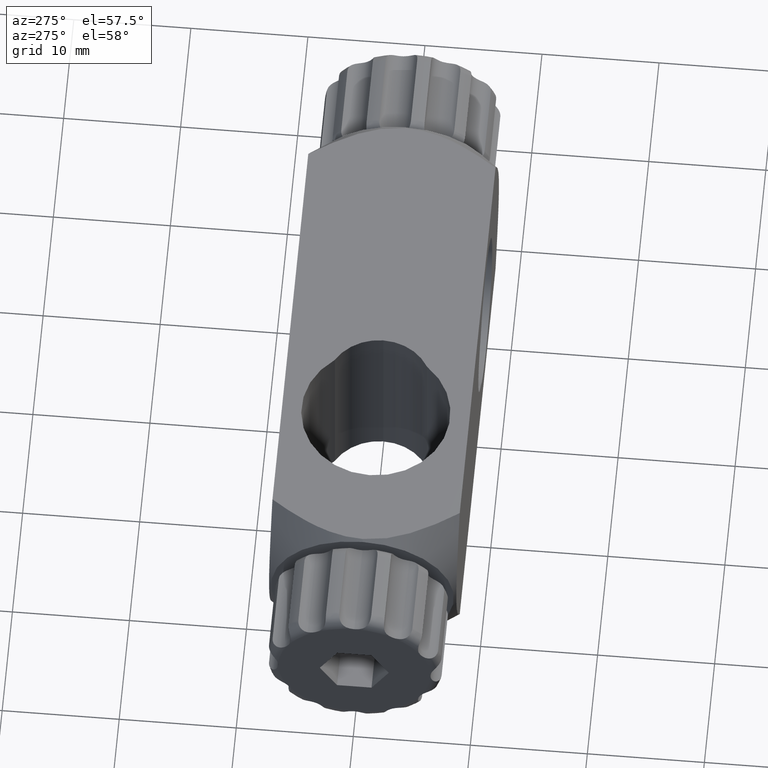
[diagram: clean part render]
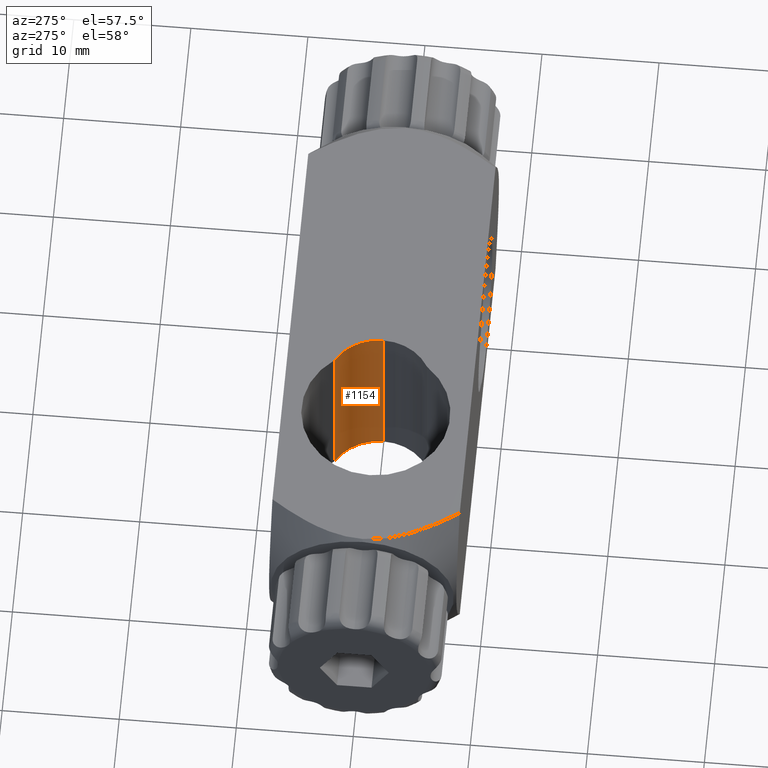
[diagram: same view with one face highlighted and labeled with its STEP entity id]
A machine part, auxiliary view. The second image highlights one B-rep face of the part: STEP entity #1154.
In plain terms, the highlighted cylindrical surface (partial cylindrical patch) has radius 4.5 mm, axis along (-0, -0, 1).
Its self-contained STEP definition (entity closure, byte-faithful):
#62 = DIRECTION ( 'NONE',  ( -0.0000000000000000000, -0.0000000000000000000, 1.000000000000000000 ) ) ;
#122 = CARTESIAN_POINT ( 'NONE',  ( -3.015625000000005300, 3.934273231408183000, -8.000000000000001800 ) ) ;
#159 = CARTESIAN_POINT ( 'NONE',  ( -0.7000000000000009500, -4.616274048041198100E-015, 7.999999999999998200 ) ) ;
#611 = VERTEX_POINT ( 'NONE', #4125 ) ;
#657 = ORIENTED_EDGE ( 'NONE', *, *, #3159, .T. ) ;
#853 = VERTEX_POINT ( 'NONE', #5436 ) ;
#1154 = ADVANCED_FACE ( 'NONE', ( #1426 ), #1277, .F. ) ;
#1182 = LINE ( 'NONE', #5445, #2466 ) ;
#1277 = CYLINDRICAL_SURFACE ( 'NONE', #5431, 4.499999999999999100 ) ;
#1394 = DIRECTION ( 'NONE',  ( -0.0000000000000000000, -0.0000000000000000000, 1.000000000000000000 ) ) ;
#1426 = FACE_OUTER_BOUND ( 'NONE', #5086, .T. ) ;
#1534 = CIRCLE ( 'NONE', #1821, 4.499999999999999100 ) ;
#1548 = CIRCLE ( 'NONE', #5279, 4.499999999999999100 ) ;
#1821 = AXIS2_PLACEMENT_3D ( 'NONE', #4513, #3640, #3157 ) ;
#1874 = VERTEX_POINT ( 'NONE', #159 ) ;
#2466 = VECTOR ( 'NONE', #1394, 1000.000000000000000 ) ;
#2591 = EDGE_CURVE ( 'NONE', #1874, #611, #1548, .T. ) ;
#2632 = EDGE_CURVE ( 'NONE', #5251, #611, #5835, .T. ) ;
#3157 = DIRECTION ( 'NONE',  ( 1.000000000000000000, 0.0000000000000000000, 0.0000000000000000000 ) ) ;
#3159 = EDGE_CURVE ( 'NONE', #853, #1874, #1182, .T. ) ;
#3640 = DIRECTION ( 'NONE',  ( 0.0000000000000000000, 0.0000000000000000000, 1.000000000000000000 ) ) ;
#3654 = CARTESIAN_POINT ( 'NONE',  ( -5.200000000000000200, -4.616274048041198100E-015, 7.999999999999998200 ) ) ;
#3674 = DIRECTION ( 'NONE',  ( 0.0000000000000000000, 0.0000000000000000000, 1.000000000000000000 ) ) ;
#3677 = ORIENTED_EDGE ( 'NONE', *, *, #2591, .T. ) ;
#4095 = CARTESIAN_POINT ( 'NONE',  ( -3.015625000000005300, 3.934273231408183000, -8.000000000000001800 ) ) ;
#4125 = CARTESIAN_POINT ( 'NONE',  ( -3.015625000000005300, 3.934273231408183000, 7.999999999999998200 ) ) ;
#4150 = CARTESIAN_POINT ( 'NONE',  ( -5.200000000000000200, -4.616274048041198100E-015, -8.000000000000001800 ) ) ;
#4430 = ORIENTED_EDGE ( 'NONE', *, *, #2632, .F. ) ;
#4513 = CARTESIAN_POINT ( 'NONE',  ( -5.200000000000000200, -4.616274048041198100E-015, -8.000000000000001800 ) ) ;
#4553 = VECTOR ( 'NONE', #4579, 1000.000000000000000 ) ;
#4576 = ORIENTED_EDGE ( 'NONE', *, *, #5142, .F. ) ;
#4579 = DIRECTION ( 'NONE',  ( -0.0000000000000000000, -0.0000000000000000000, 1.000000000000000000 ) ) ;
#5057 = DIRECTION ( 'NONE',  ( 1.000000000000000000, 0.0000000000000000000, 0.0000000000000000000 ) ) ;
#5086 = EDGE_LOOP ( 'NONE', ( #4576, #657, #3677, #4430 ) ) ;
#5142 = EDGE_CURVE ( 'NONE', #853, #5251, #1534, .T. ) ;
#5251 = VERTEX_POINT ( 'NONE', #122 ) ;
#5279 = AXIS2_PLACEMENT_3D ( 'NONE', #3654, #3674, #5458 ) ;
#5431 = AXIS2_PLACEMENT_3D ( 'NONE', #4150, #62, #5057 ) ;
#5436 = CARTESIAN_POINT ( 'NONE',  ( -0.7000000000000009500, -4.616274048041198100E-015, -8.000000000000001800 ) ) ;
#5445 = CARTESIAN_POINT ( 'NONE',  ( -0.7000000000000009500, -4.616274048041198100E-015, -8.000000000000001800 ) ) ;
#5458 = DIRECTION ( 'NONE',  ( 1.000000000000000000, 0.0000000000000000000, 0.0000000000000000000 ) ) ;
#5835 = LINE ( 'NONE', #4095, #4553 ) ;